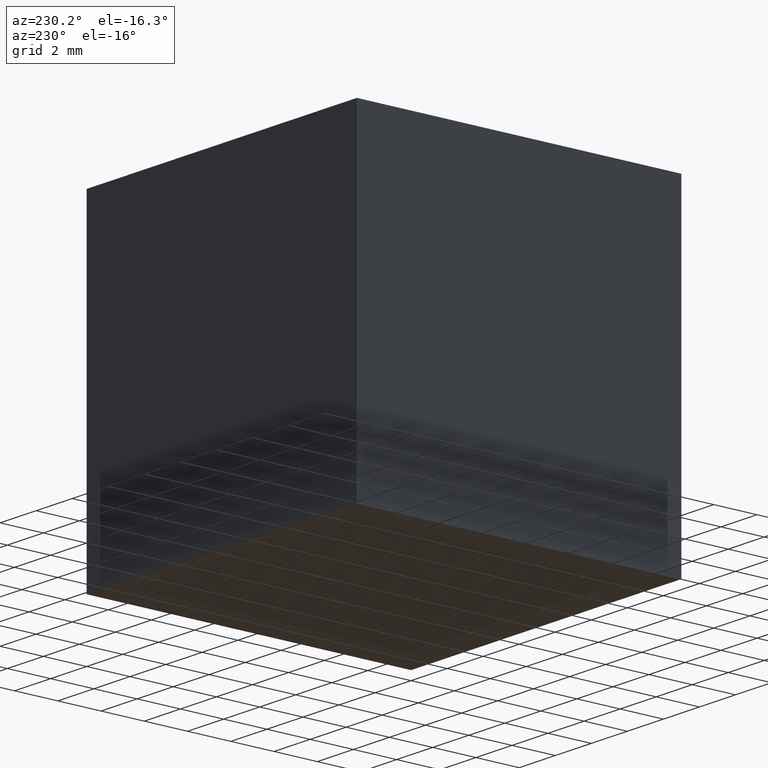
[diagram: clean part render]
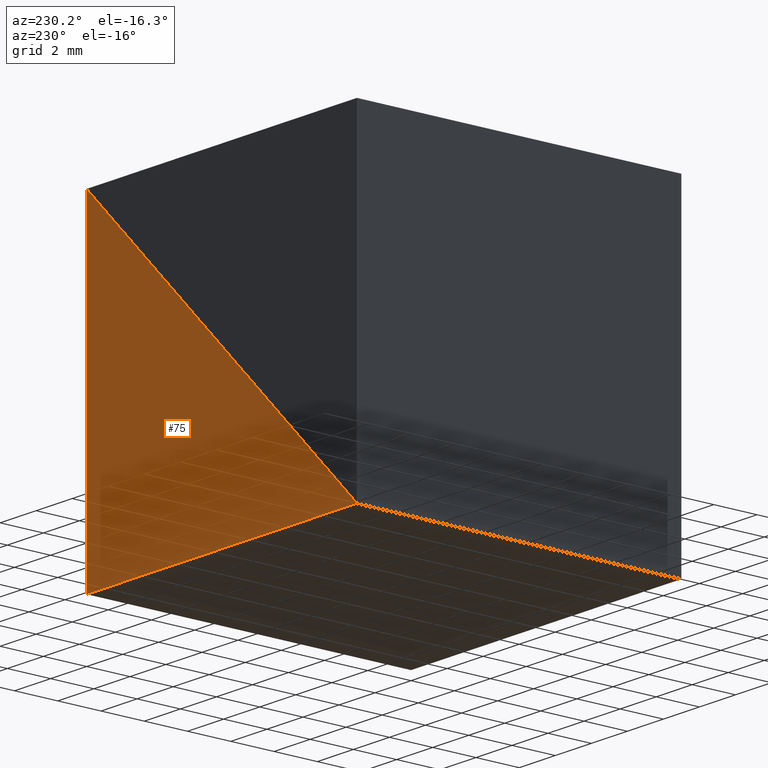
[diagram: same view with one face highlighted and labeled with its STEP entity id]
A machine part, auxiliary view. The second image highlights one B-rep face of the part: STEP entity #75.
In plain terms, the highlighted planar face has unit normal (-0, 1, 0).
Its self-contained STEP definition (entity closure, byte-faithful):
#25 = CARTESIAN_POINT ( 'NONE',  ( -15.00000000000000000, 15.00000000000000000, -14.99999999999999600 ) ) ;
#33 = DIRECTION ( 'NONE',  ( 0.7071067811865476800, 0.0000000000000000000, 0.7071067811865474600 ) ) ;
#36 = LINE ( 'NONE', #192, #158 ) ;
#43 = VERTEX_POINT ( 'NONE', #59 ) ;
#46 = AXIS2_PLACEMENT_3D ( 'NONE', #102, #79, #221 ) ;
#59 = CARTESIAN_POINT ( 'NONE',  ( 0.0000000000000000000, 15.00000000000000000, -15.00000000000000000 ) ) ;
#75 = ADVANCED_FACE ( 'NONE', ( #83 ), #291, .T. ) ;
#79 = DIRECTION ( 'NONE',  ( -0.0000000000000000000, 1.000000000000000000, 0.0000000000000000000 ) ) ;
#83 = FACE_OUTER_BOUND ( 'NONE', #301, .T. ) ;
#96 = CARTESIAN_POINT ( 'NONE',  ( 0.0000000000000000000, 15.00000000000000000, -15.00000000000000000 ) ) ;
#102 = CARTESIAN_POINT ( 'NONE',  ( 0.0000000000000000000, 15.00000000000000000, 0.0000000000000000000 ) ) ;
#117 = ORIENTED_EDGE ( 'NONE', *, *, #176, .T. ) ;
#119 = EDGE_CURVE ( 'NONE', #207, #43, #36, .T. ) ;
#122 = ORIENTED_EDGE ( 'NONE', *, *, #229, .T. ) ;
#123 = VECTOR ( 'NONE', #33, 1000.000000000000000 ) ;
#158 = VECTOR ( 'NONE', #288, 1000.000000000000000 ) ;
#160 = CARTESIAN_POINT ( 'NONE',  ( 0.0000000000000000000, 15.00000000000000000, 0.0000000000000000000 ) ) ;
#174 = LINE ( 'NONE', #96, #183 ) ;
#176 = EDGE_CURVE ( 'NONE', #43, #296, #174, .T. ) ;
#183 = VECTOR ( 'NONE', #217, 1000.000000000000000 ) ;
#192 = CARTESIAN_POINT ( 'NONE',  ( 0.0000000000000000000, 15.00000000000000000, 0.0000000000000000000 ) ) ;
#202 = CARTESIAN_POINT ( 'NONE',  ( -15.00000000000000000, 15.00000000000000000, -14.99999999999999600 ) ) ;
#207 = VERTEX_POINT ( 'NONE', #160 ) ;
#217 = DIRECTION ( 'NONE',  ( -1.000000000000000000, 0.0000000000000000000, 2.312964634635743000E-016 ) ) ;
#221 = DIRECTION ( 'NONE',  ( 0.0000000000000000000, -0.0000000000000000000, 1.000000000000000000 ) ) ;
#229 = EDGE_CURVE ( 'NONE', #296, #207, #293, .T. ) ;
#275 = ORIENTED_EDGE ( 'NONE', *, *, #119, .T. ) ;
#288 = DIRECTION ( 'NONE',  ( 0.0000000000000000000, 0.0000000000000000000, -1.000000000000000000 ) ) ;
#291 = PLANE ( 'NONE',  #46 ) ;
#293 = LINE ( 'NONE', #202, #123 ) ;
#296 = VERTEX_POINT ( 'NONE', #25 ) ;
#301 = EDGE_LOOP ( 'NONE', ( #122, #275, #117 ) ) ;